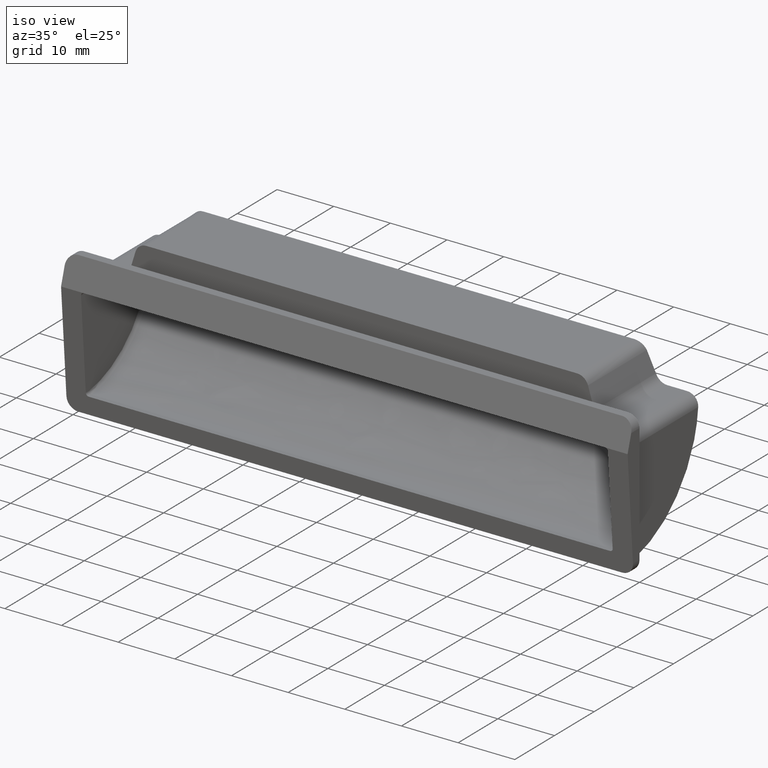
[diagram: clean part render]
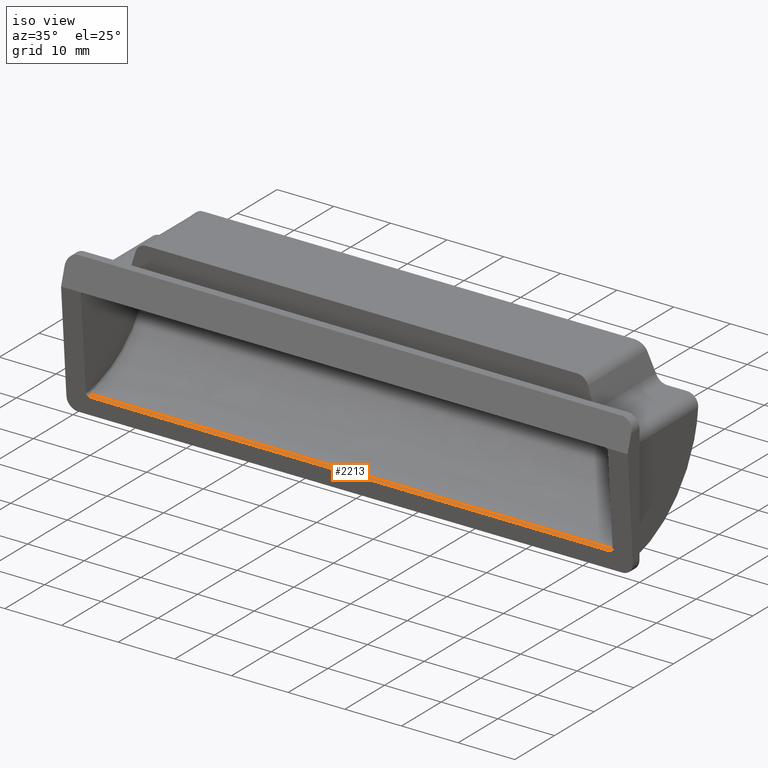
[diagram: same view with one face highlighted and labeled with its STEP entity id]
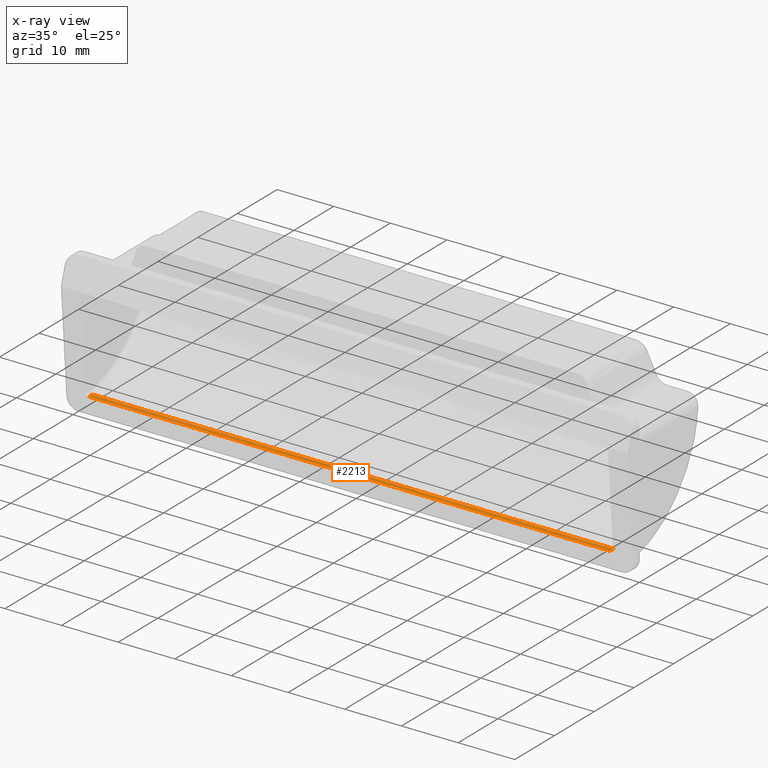
[diagram: x-ray of the same camera — body ghosted, the highlighted face saturated]
A machine part, iso view. The second image highlights one B-rep face of the part: STEP entity #2213.
The next image is the same camera in x-ray: the body ghosted, the highlighted face saturated — about 0% of this face is hidden behind the body in this view.
In plain terms, the highlighted face is a freeform B-spline surface patch.
Its self-contained STEP definition (entity closure, byte-faithful):
#1249=CARTESIAN_POINT('',(46.0,-0.865620170461084,-25.0));
#1250=VERTEX_POINT('',#1249);
#1320=CARTESIAN_POINT('',(46.0,-1.725000000000000,-25.0));
#1321=VERTEX_POINT('',#1320);
#1343=CARTESIAN_POINT('',(46.0,-0.865620170461084,-25.0));
#1344=CARTESIAN_POINT('',(46.0,-1.725000000000000,-25.0));
#1345=QUASI_UNIFORM_CURVE('',1,(#1343,#1344),.UNSPECIFIED.,.F.,.U.);
#1346=EDGE_CURVE('',#1250,#1321,#1345,.T.);
#1829=CARTESIAN_POINT('',(-46.0,-0.865620170461084,-25.0));
#1830=VERTEX_POINT('',#1829);
#1949=CARTESIAN_POINT('',(-46.0,-1.725000000000000,-25.0));
#1950=VERTEX_POINT('',#1949);
#1964=CARTESIAN_POINT('',(-46.0,-1.725000000000000,-25.0));
#1965=CARTESIAN_POINT('',(-46.0,-0.865620170461084,-25.0));
#1966=QUASI_UNIFORM_CURVE('',1,(#1964,#1965),.UNSPECIFIED.,.F.,.U.);
#1967=EDGE_CURVE('',#1950,#1830,#1966,.T.);
#2194=CARTESIAN_POINT('',(-50.595399821686172,-1.767926041951245,-25.0));
#2195=CARTESIAN_POINT('',(50.595402289318450,-1.767926041951245,-25.0));
#2196=CARTESIAN_POINT('',(-50.595399821686172,-0.822694189977475,-25.0));
#2197=CARTESIAN_POINT('',(50.595402289318450,-0.822694189977475,-25.0));
#2198=B_SPLINE_SURFACE_WITH_KNOTS('',1,1,((#2194,#2196),(#2195,#2197)),.UNSPECIFIED.,.F.,.F.,.U.,(2,2),(2,2),(0.0,101.190802111004600),(0.041708314457536,0.958291625937819),.UNSPECIFIED.);
#2199=ORIENTED_EDGE('',*,*,#1346,.F.);
#2200=CARTESIAN_POINT('',(-46.0,-0.865620170461084,-25.0));
#2201=CARTESIAN_POINT('',(46.0,-0.865620170461084,-25.0));
#2202=QUASI_UNIFORM_CURVE('',1,(#2200,#2201),.UNSPECIFIED.,.F.,.U.);
#2203=EDGE_CURVE('',#1830,#1250,#2202,.T.);
#2204=ORIENTED_EDGE('',*,*,#2203,.F.);
#2205=ORIENTED_EDGE('',*,*,#1967,.F.);
#2206=CARTESIAN_POINT('',(46.0,-1.725000000000000,-25.0));
#2207=CARTESIAN_POINT('',(-46.0,-1.725000000000000,-25.0));
#2208=QUASI_UNIFORM_CURVE('',1,(#2206,#2207),.UNSPECIFIED.,.F.,.U.);
#2209=EDGE_CURVE('',#1321,#1950,#2208,.T.);
#2210=ORIENTED_EDGE('',*,*,#2209,.F.);
#2211=EDGE_LOOP('',(#2199,#2204,#2205,#2210));
#2212=FACE_OUTER_BOUND('',#2211,.T.);
#2213=ADVANCED_FACE('',(#2212),#2198,.T.);